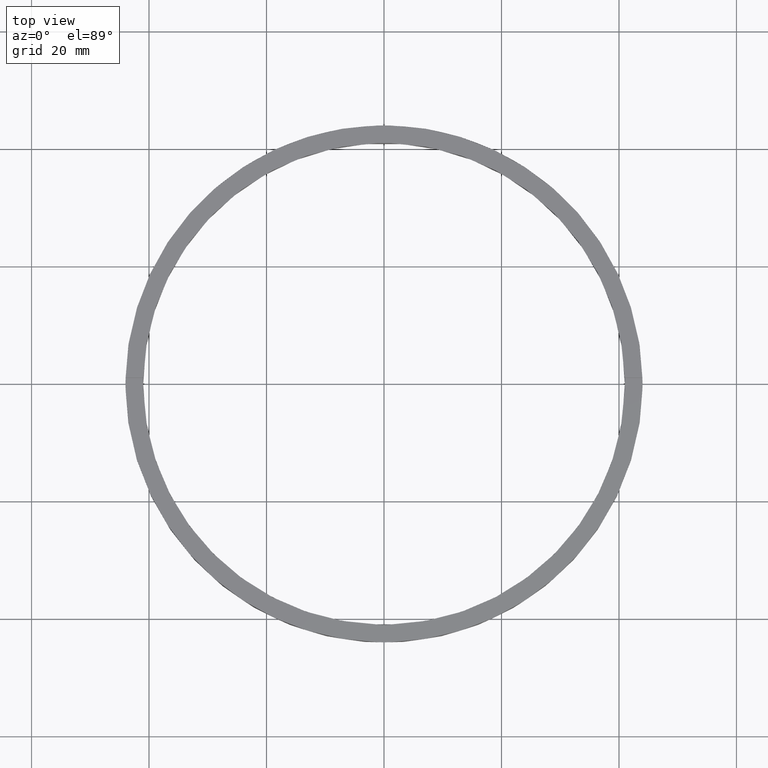
[diagram: clean part render]
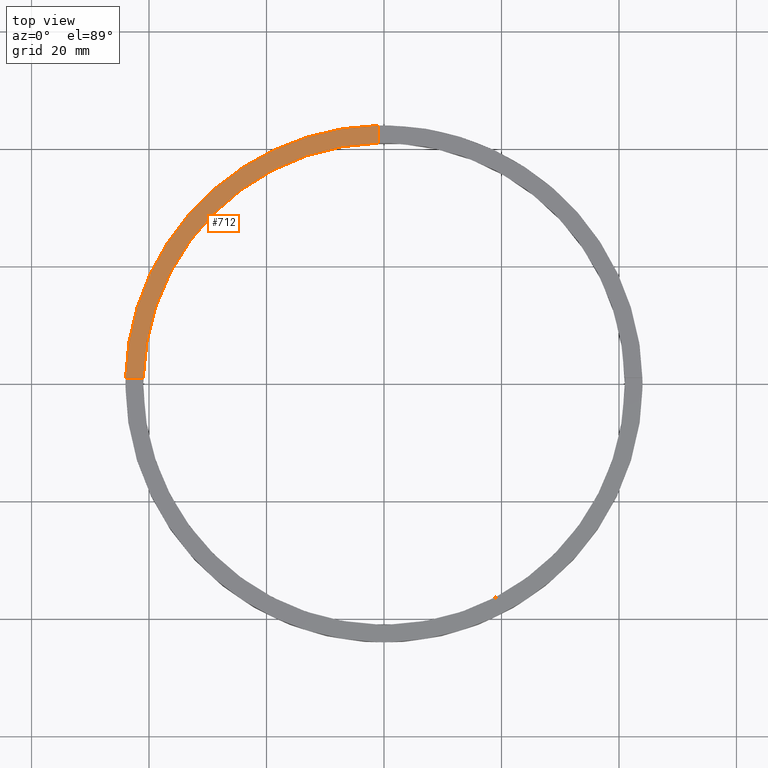
[diagram: same view with one face highlighted and labeled with its STEP entity id]
A machine part, top view. The second image highlights one B-rep face of the part: STEP entity #712.
In plain terms, the highlighted planar face has unit normal (0, 0, 1).
Its self-contained STEP definition (entity closure, byte-faithful):
#4 = EDGE_CURVE ( 'NONE', #451, #695, #588, .T. ) ;
#18 = EDGE_CURVE ( 'NONE', #256, #695, #567, .T. ) ;
#19 = LINE ( 'NONE', #734, #267 ) ;
#23 = DIRECTION ( 'NONE',  ( -0.000000000000000000, -1.000000000000000000, -0.000000000000000000 ) ) ;
#26 = ORIENTED_EDGE ( 'NONE', *, *, #18, .T. ) ;
#34 = AXIS2_PLACEMENT_3D ( 'NONE', #119, #299, #233 ) ;
#62 = CIRCLE ( 'NONE', #34, 41.00000000000000000 ) ;
#118 = DIRECTION ( 'NONE',  ( 0.000000000000000000, 0.000000000000000000, 1.000000000000000000 ) ) ;
#119 = CARTESIAN_POINT ( 'NONE',  ( 0.000000000000000000, 0.000000000000000000, 4.000000000000000000 ) ) ;
#123 = DIRECTION ( 'NONE',  ( 0.000000000000000000, 0.000000000000000000, 1.000000000000000000 ) ) ;
#139 = CARTESIAN_POINT ( 'NONE',  ( 0.000000000000000000, 0.000000000000000000, 4.000000000000000000 ) ) ;
#156 = DIRECTION ( 'NONE',  ( 1.000000000000000000, 0.000000000000000000, -0.000000000000000000 ) ) ;
#216 = ORIENTED_EDGE ( 'NONE', *, *, #657, .F. ) ;
#225 = CARTESIAN_POINT ( 'NONE',  ( -1.000000000000025979, 40.98780306383839900, 4.000000000000000000 ) ) ;
#233 = DIRECTION ( 'NONE',  ( 1.000000000000000000, 0.000000000000000000, 0.000000000000000000 ) ) ;
#256 = VERTEX_POINT ( 'NONE', #407 ) ;
#261 = DIRECTION ( 'NONE',  ( 1.000000000000000000, 0.000000000000000000, 0.000000000000000000 ) ) ;
#267 = VECTOR ( 'NONE', #23, 1000.000000000000000 ) ;
#268 = EDGE_CURVE ( 'NONE', #779, #451, #62, .T. ) ;
#299 = DIRECTION ( 'NONE',  ( 0.000000000000000000, 0.000000000000000000, 1.000000000000000000 ) ) ;
#319 = VECTOR ( 'NONE', #516, 1000.000000000000000 ) ;
#343 = AXIS2_PLACEMENT_3D ( 'NONE', #686, #118, #156 ) ;
#396 = AXIS2_PLACEMENT_3D ( 'NONE', #139, #123, #261 ) ;
#407 = CARTESIAN_POINT ( 'NONE',  ( -1.000000000000025979, 43.98863489584553577, 4.000000000000000000 ) ) ;
#417 = CARTESIAN_POINT ( 'NONE',  ( -34.00000000000018474, 0.9999999999999724665, 4.000000000000000000 ) ) ;
#451 = VERTEX_POINT ( 'NONE', #612 ) ;
#516 = DIRECTION ( 'NONE',  ( -1.000000000000000000, -1.951563910473907735E-16, 0.000000000000000000 ) ) ;
#521 = CARTESIAN_POINT ( 'NONE',  ( -43.98863489584554287, 0.9999999999999705791, 4.000000000000000000 ) ) ;
#559 = FACE_OUTER_BOUND ( 'NONE', #706, .T. ) ;
#567 = CIRCLE ( 'NONE', #396, 44.00000000000000000 ) ;
#588 = LINE ( 'NONE', #417, #319 ) ;
#612 = CARTESIAN_POINT ( 'NONE',  ( -40.98780306383839900, 0.9999999999999711342, 4.000000000000000000 ) ) ;
#657 = EDGE_CURVE ( 'NONE', #256, #779, #19, .T. ) ;
#686 = CARTESIAN_POINT ( 'NONE',  ( 0.000000000000000000, 0.000000000000000000, 4.000000000000000000 ) ) ;
#695 = VERTEX_POINT ( 'NONE', #521 ) ;
#706 = EDGE_LOOP ( 'NONE', ( #216, #26, #709, #742 ) ) ;
#709 = ORIENTED_EDGE ( 'NONE', *, *, #4, .F. ) ;
#712 = ADVANCED_FACE ( 'NONE', ( #559 ), #769, .T. ) ;
#734 = CARTESIAN_POINT ( 'NONE',  ( -1.000000000000025979, 33.99999999999999289, 4.000000000000000000 ) ) ;
#742 = ORIENTED_EDGE ( 'NONE', *, *, #268, .F. ) ;
#769 = PLANE ( 'NONE',  #343 ) ;
#779 = VERTEX_POINT ( 'NONE', #225 ) ;